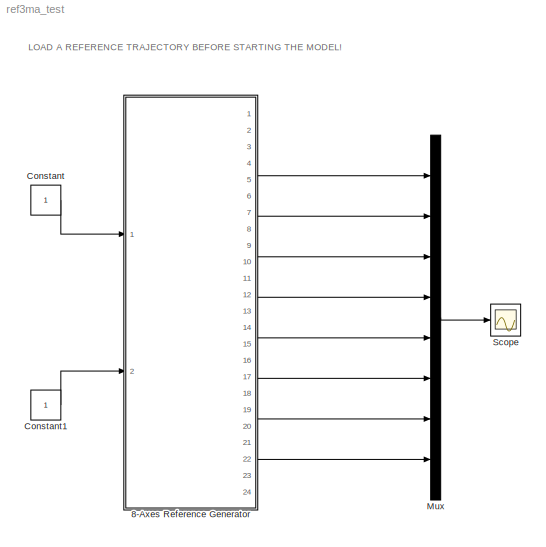
MODEL ref3ma_test
KIND model
CONFIG AbsTol = auto
CONFIG FixedStep = .001
CONFIG MaxStep = auto
CONFIG MinStep = auto
CONFIG RelTol = 1e-3
CONFIG Solver = FixedStepDiscrete
CONFIG SolverMode = Auto
CONFIG StartTime = 0.0
CONFIG StopTime = 100.0
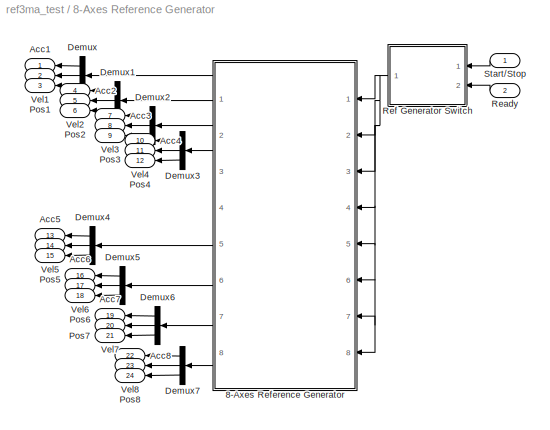
BLOCK [SubSystem] 8-Axes Reference Generator
  OpenFcn = global ref_part1 ref_part2 ref_part3 ref_part4 ref_part5 ref_part6 ref_part7 ref_part8; R12_r3g_axes
  Ports = [2, 24]
  RTWFcnNameOpts = Auto
  RTWFileNameOpts = Auto
  RTWSystemCode = Auto
  ShowPortLabels = on
  TreatAsAtomicUnit = off
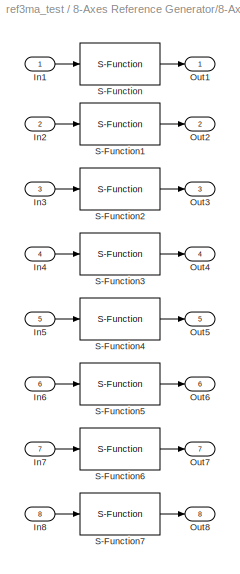
BLOCK [SubSystem] 8-Axes Reference Generator/8-Axes Reference Generator
  MaskIconFrame = on
  MaskIconOpaque = on
  MaskIconRotate = none
  MaskIconUnits = autoscale
  MaskType = 4-Axes Ref3 Block
  OpenFcn = global ref_part1 ref_part2 ref_part3 ref_part4; r3g_axes
  Ports = [8, 8]
  RTWFcnNameOpts = Auto
  RTWFileNameOpts = Auto
  RTWSystemCode = Auto
  ShowPortLabels = on
  TreatAsAtomicUnit = off
BLOCK [Inport] 8-Axes Reference Generator/8-Axes Reference Generator/In1
  Interpolate = on
  LatchInput = off
  Port = 1
BLOCK [Inport] 8-Axes Reference Generator/8-Axes Reference Generator/In2
  Interpolate = on
  LatchInput = off
  Port = 2
BLOCK [Inport] 8-Axes Reference Generator/8-Axes Reference Generator/In3
  Interpolate = on
  LatchInput = off
  Port = 3
BLOCK [Inport] 8-Axes Reference Generator/8-Axes Reference Generator/In4
  Interpolate = on
  LatchInput = off
  Port = 4
BLOCK [Inport] 8-Axes Reference Generator/8-Axes Reference Generator/In5
  Interpolate = on
  LatchInput = off
  Port = 5
BLOCK [Inport] 8-Axes Reference Generator/8-Axes Reference Generator/In6
  Interpolate = on
  LatchInput = off
  Port = 6
BLOCK [Inport] 8-Axes Reference Generator/8-Axes Reference Generator/In7
  Interpolate = on
  LatchInput = off
  Port = 7
BLOCK [Inport] 8-Axes Reference Generator/8-Axes Reference Generator/In8
  Interpolate = on
  LatchInput = off
  Port = 8
BLOCK [Outport] 8-Axes Reference Generator/8-Axes Reference Generator/Out1
  InitialOutput = []
  OutputWhenDisabled = held
  Port = 1
BLOCK [Outport] 8-Axes Reference Generator/8-Axes Reference Generator/Out2
  InitialOutput = []
  OutputWhenDisabled = held
  Port = 2
BLOCK [Outport] 8-Axes Reference Generator/8-Axes Reference Generator/Out3
  InitialOutput = []
  OutputWhenDisabled = held
  Port = 3
BLOCK [Outport] 8-Axes Reference Generator/8-Axes Reference Generator/Out4
  InitialOutput = []
  OutputWhenDisabled = held
  Port = 4
BLOCK [Outport] 8-Axes Reference Generator/8-Axes Reference Generator/Out5
  InitialOutput = []
  OutputWhenDisabled = held
  Port = 5
BLOCK [Outport] 8-Axes Reference Generator/8-Axes Reference Generator/Out6
  InitialOutput = []
  OutputWhenDisabled = held
  Port = 6
BLOCK [Outport] 8-Axes Reference Generator/8-Axes Reference Generator/Out7
  InitialOutput = []
  OutputWhenDisabled = held
  Port = 7
BLOCK [Outport] 8-Axes Reference Generator/8-Axes Reference Generator/Out8
  InitialOutput = []
  OutputWhenDisabled = held
  Port = 8
BLOCK [S-Function] 8-Axes Reference Generator/8-Axes Reference Generator/S-Function
  FunctionName = ref3
  Parameters = ref_part1
  PortCounts = []
  Ports = [1, 1]
  SFunctionModules = ''
BLOCK [S-Function] 8-Axes Reference Generator/8-Axes Reference Generator/S-Function1
  FunctionName = ref3
  Parameters = ref_part2
  PortCounts = []
  Ports = [1, 1]
  SFunctionModules = ''
BLOCK [S-Function] 8-Axes Reference Generator/8-Axes Reference Generator/S-Function2
  FunctionName = ref3
  Parameters = ref_part3
  PortCounts = []
  Ports = [1, 1]
  SFunctionModules = ''
BLOCK [S-Function] 8-Axes Reference Generator/8-Axes Reference Generator/S-Function3
  FunctionName = ref3
  Parameters = ref_part4
  PortCounts = []
  Ports = [1, 1]
  SFunctionModules = ''
BLOCK [S-Function] 8-Axes Reference Generator/8-Axes Reference Generator/S-Function4
  FunctionName = ref3
  Parameters = ref_part5
  PortCounts = []
  Ports = [1, 1]
  SFunctionModules = ''
BLOCK [S-Function] 8-Axes Reference Generator/8-Axes Reference Generator/S-Function5
  FunctionName = ref3
  Parameters = ref_part6
  PortCounts = []
  Ports = [1, 1]
  SFunctionModules = ''
BLOCK [S-Function] 8-Axes Reference Generator/8-Axes Reference Generator/S-Function6
  FunctionName = ref3
  Parameters = ref_part7
  PortCounts = []
  Ports = [1, 1]
  SFunctionModules = ''
BLOCK [S-Function] 8-Axes Reference Generator/8-Axes Reference Generator/S-Function7
  FunctionName = ref3
  Parameters = ref_part8
  PortCounts = []
  Ports = [1, 1]
  SFunctionModules = ''
BLOCK [Outport] 8-Axes Reference Generator/Acc1
  InitialOutput = []
  OutputWhenDisabled = held
  Port = 1
BLOCK [Outport] 8-Axes Reference Generator/Acc2
  InitialOutput = []
  OutputWhenDisabled = held
  Port = 4
BLOCK [Outport] 8-Axes Reference Generator/Acc3
  InitialOutput = []
  OutputWhenDisabled = held
  Port = 7
BLOCK [Outport] 8-Axes Reference Generator/Acc4
  InitialOutput = []
  OutputWhenDisabled = held
  Port = 10
BLOCK [Outport] 8-Axes Reference Generator/Acc5
  InitialOutput = []
  OutputWhenDisabled = held
  Port = 13
BLOCK [Outport] 8-Axes Reference Generator/Acc6
  InitialOutput = []
  OutputWhenDisabled = held
  Port = 16
BLOCK [Outport] 8-Axes Reference Generator/Acc7
  InitialOutput = []
  OutputWhenDisabled = held
  Port = 19
BLOCK [Outport] 8-Axes Reference Generator/Acc8
  InitialOutput = []
  OutputWhenDisabled = held
  Port = 22
BLOCK [Demux] 8-Axes Reference Generator/Demux
  BusSelectionMode = off
  Outputs = 3
  Ports = [1, 3]
BLOCK [Demux] 8-Axes Reference Generator/Demux1
  BusSelectionMode = off
  Outputs = 3
  Ports = [1, 3]
BLOCK [Demux] 8-Axes Reference Generator/Demux2
  BusSelectionMode = off
  Outputs = 3
  Ports = [1, 3]
BLOCK [Demux] 8-Axes Reference Generator/Demux3
  BusSelectionMode = off
  Outputs = 3
  Ports = [1, 3]
BLOCK [Demux] 8-Axes Reference Generator/Demux4
  BusSelectionMode = off
  Outputs = 3
  Ports = [1, 3]
BLOCK [Demux] 8-Axes Reference Generator/Demux5
  BusSelectionMode = off
  Outputs = 3
  Ports = [1, 3]
BLOCK [Demux] 8-Axes Reference Generator/Demux6
  BusSelectionMode = off
  Outputs = 3
  Ports = [1, 3]
BLOCK [Demux] 8-Axes Reference Generator/Demux7
  BusSelectionMode = off
  Outputs = 3
  Ports = [1, 3]
BLOCK [Outport] 8-Axes Reference Generator/Pos1
  InitialOutput = []
  OutputWhenDisabled = held
  Port = 3
BLOCK [Outport] 8-Axes Reference Generator/Pos2
  InitialOutput = []
  OutputWhenDisabled = held
  Port = 6
BLOCK [Outport] 8-Axes Reference Generator/Pos3
  InitialOutput = []
  OutputWhenDisabled = held
  Port = 9
BLOCK [Outport] 8-Axes Reference Generator/Pos4
  InitialOutput = []
  OutputWhenDisabled = held
  Port = 12
BLOCK [Outport] 8-Axes Reference Generator/Pos5
  InitialOutput = []
  OutputWhenDisabled = held
  Port = 15
BLOCK [Outport] 8-Axes Reference Generator/Pos6
  InitialOutput = []
  OutputWhenDisabled = held
  Port = 18
BLOCK [Outport] 8-Axes Reference Generator/Pos7
  InitialOutput = []
  OutputWhenDisabled = held
  Port = 21
BLOCK [Outport] 8-Axes Reference Generator/Pos8
  InitialOutput = []
  OutputWhenDisabled = held
  Port = 24
BLOCK [Inport] 8-Axes Reference Generator/Ready
  Interpolate = on
  LatchInput = off
  Port = 2
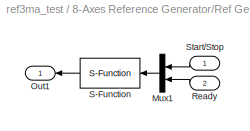
BLOCK [SubSystem] 8-Axes Reference Generator/Ref Generator Switch
  Ports = [2, 1]
  RTWFcnNameOpts = Auto
  RTWFileNameOpts = Auto
  RTWSystemCode = Auto
  ShowPortLabels = on
  TreatAsAtomicUnit = off
BLOCK [Mux] 8-Axes Reference Generator/Ref Generator Switch/Mux1
  DisplayOption = bar
  Inputs = 2
  Ports = [2, 1]
BLOCK [Outport] 8-Axes Reference Generator/Ref Generator Switch/Out1
  InitialOutput = []
  OutputWhenDisabled = held
  Port = 1
BLOCK [Inport] 8-Axes Reference Generator/Ref Generator Switch/Ready
  Interpolate = on
  LatchInput = off
  Port = 2
BLOCK [S-Function] 8-Axes Reference Generator/Ref Generator Switch/S-Function
  FunctionName = refswitch
  PortCounts = []
  Ports = [1, 1]
  SFunctionModules = ''
BLOCK [Inport] 8-Axes Reference Generator/Ref Generator Switch/Start//Stop
  Interpolate = on
  LatchInput = off
  Port = 1
BLOCK [Inport] 8-Axes Reference Generator/Start//Stop
  Interpolate = on
  LatchInput = off
  Port = 1
BLOCK [Outport] 8-Axes Reference Generator/Vel1
  InitialOutput = []
  OutputWhenDisabled = held
  Port = 2
BLOCK [Outport] 8-Axes Reference Generator/Vel2
  InitialOutput = []
  OutputWhenDisabled = held
  Port = 5
BLOCK [Outport] 8-Axes Reference Generator/Vel3
  InitialOutput = []
  OutputWhenDisabled = held
  Port = 8
BLOCK [Outport] 8-Axes Reference Generator/Vel4
  InitialOutput = []
  OutputWhenDisabled = held
  Port = 11
BLOCK [Outport] 8-Axes Reference Generator/Vel5
  InitialOutput = []
  OutputWhenDisabled = held
  Port = 14
BLOCK [Outport] 8-Axes Reference Generator/Vel6
  InitialOutput = []
  OutputWhenDisabled = held
  Port = 17
BLOCK [Outport] 8-Axes Reference Generator/Vel7
  InitialOutput = []
  OutputWhenDisabled = held
  Port = 20
BLOCK [Outport] 8-Axes Reference Generator/Vel8
  InitialOutput = []
  OutputWhenDisabled = held
  Port = 23
BLOCK [Constant] Constant
  Value = 1
  VectorParams1D = on
BLOCK [Constant] Constant1
  Value = 1
  VectorParams1D = on
BLOCK [Mux] Mux
  DisplayOption = bar
  Inputs = 8
  Ports = [8, 1]
BLOCK [Scope] Scope
  DataFormat = StructureWithTime
  Decimation = 1
  Floating = off
  Grid = on
  LimitDataPoints = on
  MaxDataPoints = 5000
  NumInputPorts = 1
  Ports = [1]
  SampleInput = off
  SampleTime = 0
  SaveName = ScopeData
  SaveToWorkspace = off
  TickLabels = OneTimeTick
  TimeRange = auto
  YMax = 1.1
  YMin = -0.1
  ZoomMode = on
LINE 8-Axes Reference Generator/8-Axes Reference Generator/In1:1 -> 8-Axes Reference Generator/8-Axes Reference Generator/S-Function:1
LINE 8-Axes Reference Generator/8-Axes Reference Generator/In2:1 -> 8-Axes Reference Generator/8-Axes Reference Generator/S-Function1:1
LINE 8-Axes Reference Generator/8-Axes Reference Generator/In3:1 -> 8-Axes Reference Generator/8-Axes Reference Generator/S-Function2:1
LINE 8-Axes Reference Generator/8-Axes Reference Generator/In4:1 -> 8-Axes Reference Generator/8-Axes Reference Generator/S-Function3:1
LINE 8-Axes Reference Generator/8-Axes Reference Generator/In5:1 -> 8-Axes Reference Generator/8-Axes Reference Generator/S-Function4:1
LINE 8-Axes Reference Generator/8-Axes Reference Generator/In6:1 -> 8-Axes Reference Generator/8-Axes Reference Generator/S-Function5:1
LINE 8-Axes Reference Generator/8-Axes Reference Generator/In7:1 -> 8-Axes Reference Generator/8-Axes Reference Generator/S-Function6:1
LINE 8-Axes Reference Generator/8-Axes Reference Generator/In8:1 -> 8-Axes Reference Generator/8-Axes Reference Generator/S-Function7:1
LINE 8-Axes Reference Generator/8-Axes Reference Generator/S-Function1:1 -> 8-Axes Reference Generator/8-Axes Reference Generator/Out2:1
LINE 8-Axes Reference Generator/8-Axes Reference Generator/S-Function2:1 -> 8-Axes Reference Generator/8-Axes Reference Generator/Out3:1
LINE 8-Axes Reference Generator/8-Axes Reference Generator/S-Function3:1 -> 8-Axes Reference Generator/8-Axes Reference Generator/Out4:1
LINE 8-Axes Reference Generator/8-Axes Reference Generator/S-Function4:1 -> 8-Axes Reference Generator/8-Axes Reference Generator/Out5:1
LINE 8-Axes Reference Generator/8-Axes Reference Generator/S-Function5:1 -> 8-Axes Reference Generator/8-Axes Reference Generator/Out6:1
LINE 8-Axes Reference Generator/8-Axes Reference Generator/S-Function6:1 -> 8-Axes Reference Generator/8-Axes Reference Generator/Out7:1
LINE 8-Axes Reference Generator/8-Axes Reference Generator/S-Function7:1 -> 8-Axes Reference Generator/8-Axes Reference Generator/Out8:1
LINE 8-Axes Reference Generator/8-Axes Reference Generator/S-Function:1 -> 8-Axes Reference Generator/8-Axes Reference Generator/Out1:1
LINE 8-Axes Reference Generator/8-Axes Reference Generator:1 -> 8-Axes Reference Generator/Demux:1
LINE 8-Axes Reference Generator/8-Axes Reference Generator:2 -> 8-Axes Reference Generator/Demux1:1
LINE 8-Axes Reference Generator/8-Axes Reference Generator:3 -> 8-Axes Reference Generator/Demux2:1
LINE 8-Axes Reference Generator/8-Axes Reference Generator:4 -> 8-Axes Reference Generator/Demux3:1
LINE 8-Axes Reference Generator/8-Axes Reference Generator:5 -> 8-Axes Reference Generator/Demux4:1
LINE 8-Axes Reference Generator/8-Axes Reference Generator:6 -> 8-Axes Reference Generator/Demux5:1
LINE 8-Axes Reference Generator/8-Axes Reference Generator:7 -> 8-Axes Reference Generator/Demux6:1
LINE 8-Axes Reference Generator/8-Axes Reference Generator:8 -> 8-Axes Reference Generator/Demux7:1
LINE 8-Axes Reference Generator/Demux1:1 -> 8-Axes Reference Generator/Acc2:1
LINE 8-Axes Reference Generator/Demux1:2 -> 8-Axes Reference Generator/Vel2:1
LINE 8-Axes Reference Generator/Demux1:3 -> 8-Axes Reference Generator/Pos2:1
LINE 8-Axes Reference Generator/Demux2:1 -> 8-Axes Reference Generator/Acc3:1
LINE 8-Axes Reference Generator/Demux2:2 -> 8-Axes Reference Generator/Vel3:1
LINE 8-Axes Reference Generator/Demux2:3 -> 8-Axes Reference Generator/Pos3:1
LINE 8-Axes Reference Generator/Demux3:1 -> 8-Axes Reference Generator/Acc4:1
LINE 8-Axes Reference Generator/Demux3:2 -> 8-Axes Reference Generator/Vel4:1
LINE 8-Axes Reference Generator/Demux3:3 -> 8-Axes Reference Generator/Pos4:1
LINE 8-Axes Reference Generator/Demux4:1 -> 8-Axes Reference Generator/Acc5:1
LINE 8-Axes Reference Generator/Demux4:2 -> 8-Axes Reference Generator/Vel5:1
LINE 8-Axes Reference Generator/Demux4:3 -> 8-Axes Reference Generator/Pos5:1
LINE 8-Axes Reference Generator/Demux5:1 -> 8-Axes Reference Generator/Acc6:1
LINE 8-Axes Reference Generator/Demux5:2 -> 8-Axes Reference Generator/Vel6:1
LINE 8-Axes Reference Generator/Demux5:3 -> 8-Axes Reference Generator/Pos6:1
LINE 8-Axes Reference Generator/Demux6:1 -> 8-Axes Reference Generator/Acc7:1
LINE 8-Axes Reference Generator/Demux6:2 -> 8-Axes Reference Generator/Vel7:1
LINE 8-Axes Reference Generator/Demux6:3 -> 8-Axes Reference Generator/Pos7:1
LINE 8-Axes Reference Generator/Demux7:1 -> 8-Axes Reference Generator/Acc8:1
LINE 8-Axes Reference Generator/Demux7:2 -> 8-Axes Reference Generator/Vel8:1
LINE 8-Axes Reference Generator/Demux7:3 -> 8-Axes Reference Generator/Pos8:1
LINE 8-Axes Reference Generator/Demux:1 -> 8-Axes Reference Generator/Acc1:1
LINE 8-Axes Reference Generator/Demux:2 -> 8-Axes Reference Generator/Vel1:1
LINE 8-Axes Reference Generator/Demux:3 -> 8-Axes Reference Generator/Pos1:1
LINE 8-Axes Reference Generator/Ready:1 -> 8-Axes Reference Generator/Ref Generator Switch:2
LINE 8-Axes Reference Generator/Ref Generator Switch/Mux1:1 -> 8-Axes Reference Generator/Ref Generator Switch/S-Function:1
LINE 8-Axes Reference Generator/Ref Generator Switch/Ready:1 -> 8-Axes Reference Generator/Ref Generator Switch/Mux1:2
LINE 8-Axes Reference Generator/Ref Generator Switch/S-Function:1 -> 8-Axes Reference Generator/Ref Generator Switch/Out1:1
LINE 8-Axes Reference Generator/Ref Generator Switch/Start//Stop:1 -> 8-Axes Reference Generator/Ref Generator Switch/Mux1:1
NET 8-Axes Reference Generator/Ref Generator Switch:1 -> 8-Axes Reference Generator/8-Axes Reference Generator:1, 8-Axes Reference Generator/8-Axes Reference Generator:2, 8-Axes Reference Generator/8-Axes Reference Generator:3, 8-Axes Reference Generator/8-Axes Reference Generator:4, 8-Axes Reference Generator/8-Axes Reference Generator:5, 8-Axes Reference Generator/8-Axes Reference Generator:6, 8-Axes Reference Generator/8-Axes Reference Generator:7, 8-Axes Reference Generator/8-Axes Reference Generator:8
LINE 8-Axes Reference Generator/Start//Stop:1 -> 8-Axes Reference Generator/Ref Generator Switch:1
LINE 8-Axes Reference Generator:12 -> Mux:4
LINE 8-Axes Reference Generator:15 -> Mux:5
LINE 8-Axes Reference Generator:18 -> Mux:6
LINE 8-Axes Reference Generator:21 -> Mux:7
LINE 8-Axes Reference Generator:24 -> Mux:8
LINE 8-Axes Reference Generator:3 -> Mux:1
LINE 8-Axes Reference Generator:6 -> Mux:2
LINE 8-Axes Reference Generator:9 -> Mux:3
LINE Constant1:1 -> 8-Axes Reference Generator:2
LINE Constant:1 -> 8-Axes Reference Generator:1
LINE Mux:1 -> Scope:1
note: NET lines group one-source signal fan-out (src -> all destinations, sorted); 1:1 wires keep LINE
